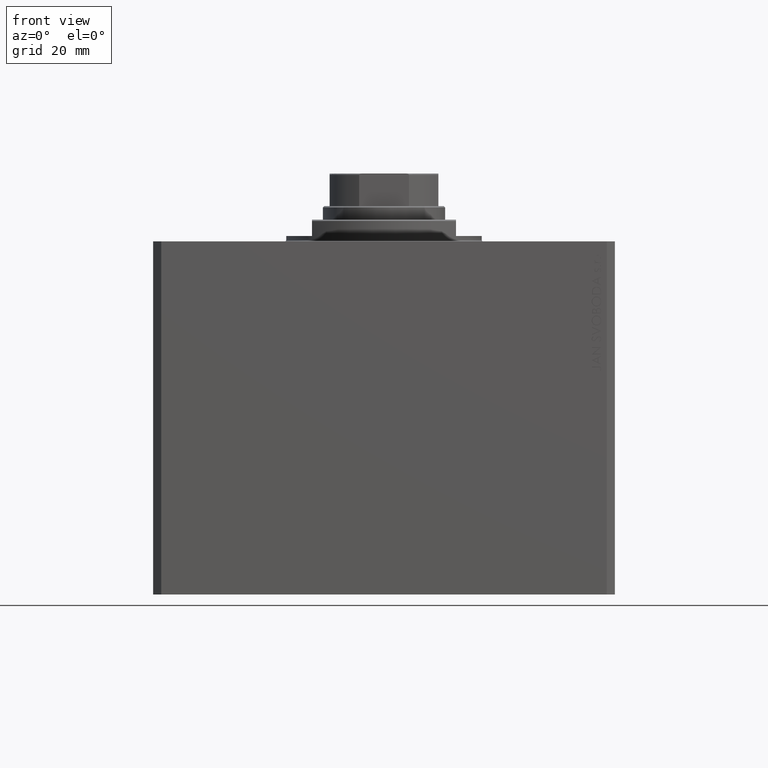
[diagram: clean part render]
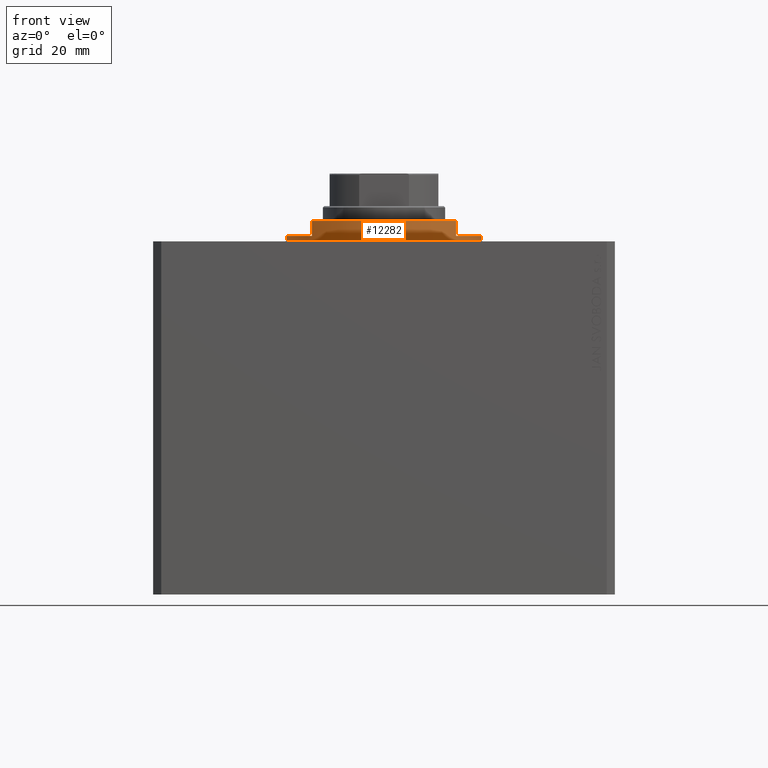
[diagram: same view with one face highlighted and labeled with its STEP entity id]
A machine part, front view. The second image highlights one B-rep face of the part: STEP entity #12282.
In plain terms, the highlighted cylindrical surface (partial cylindrical patch) has radius 36 mm, axis along (0, 0, -1).
Its self-contained STEP definition (entity closure, byte-faithful):
#245 = CARTESIAN_POINT ( 'NONE',  ( -36.00000000000000000, 4.408728476930470856E-15, -2.000000000000000000 ) ) ;
#477 = EDGE_CURVE ( 'NONE', #15565, #11617, #5649, .T. ) ;
#2856 = CARTESIAN_POINT ( 'NONE',  ( 26.50000000000000000, -24.36698586202240691, -2.000000000000000000 ) ) ;
#3354 = VERTEX_POINT ( 'NONE', #39357 ) ;
#4597 = VERTEX_POINT ( 'NONE', #41248 ) ;
#5018 = CARTESIAN_POINT ( 'NONE',  ( 26.50000000000000000, -24.36698586202240691, -7.499999999999965361 ) ) ;
#5599 = LINE ( 'NONE', #29730, #21843 ) ;
#5649 = CIRCLE ( 'NONE', #43823, 36.00000000000000000 ) ;
#5766 = ORIENTED_EDGE ( 'NONE', *, *, #477, .T. ) ;
#7180 = CARTESIAN_POINT ( 'NONE',  ( 0.000000000000000000, 0.000000000000000000, -2.000000000000000000 ) ) ;
#9266 = ORIENTED_EDGE ( 'NONE', *, *, #32242, .T. ) ;
#11451 = FACE_OUTER_BOUND ( 'NONE', #25705, .T. ) ;
#11617 = VERTEX_POINT ( 'NONE', #5018 ) ;
#11909 = CYLINDRICAL_SURFACE ( 'NONE', #16765, 36.00000000000000000 ) ;
#12006 = ORIENTED_EDGE ( 'NONE', *, *, #20584, .F. ) ;
#12282 = ADVANCED_FACE ( 'NONE', ( #11451 ), #11909, .T. ) ;
#12810 = CARTESIAN_POINT ( 'NONE',  ( 26.50000000000000000, -24.36698586202240691, -8.000000000000000000 ) ) ;
#13751 = DIRECTION ( 'NONE',  ( -1.000000000000000000, 0.000000000000000000, 0.000000000000000000 ) ) ;
#14523 = LINE ( 'NONE', #17226, #33543 ) ;
#14738 = AXIS2_PLACEMENT_3D ( 'NONE', #30987, #34379, #24008 ) ;
#14849 = CARTESIAN_POINT ( 'NONE',  ( 0.000000000000000000, 0.000000000000000000, -8.000000000000000000 ) ) ;
#15192 = AXIS2_PLACEMENT_3D ( 'NONE', #33527, #23817, #41169 ) ;
#15565 = VERTEX_POINT ( 'NONE', #36744 ) ;
#15735 = DIRECTION ( 'NONE',  ( 1.000000000000000000, 0.000000000000000000, 0.000000000000000000 ) ) ;
#16403 = EDGE_CURVE ( 'NONE', #3354, #19701, #39238, .T. ) ;
#16765 = AXIS2_PLACEMENT_3D ( 'NONE', #14849, #43242, #15735 ) ;
#16960 = EDGE_CURVE ( 'NONE', #40272, #11617, #22738, .T. ) ;
#17008 = EDGE_CURVE ( 'NONE', #4597, #3354, #5599, .T. ) ;
#17132 = CARTESIAN_POINT ( 'NONE',  ( 0.000000000000000000, 0.000000000000000000, -7.499999999999965361 ) ) ;
#17226 = CARTESIAN_POINT ( 'NONE',  ( -26.50000000000000000, -24.36698586202240691, -8.000000000000000000 ) ) ;
#19302 = ORIENTED_EDGE ( 'NONE', *, *, #17008, .T. ) ;
#19701 = VERTEX_POINT ( 'NONE', #33284 ) ;
#20433 = VECTOR ( 'NONE', #32889, 1000.000000000000000 ) ;
#20584 = EDGE_CURVE ( 'NONE', #38116, #19701, #23910, .T. ) ;
#20663 = ORIENTED_EDGE ( 'NONE', *, *, #16403, .T. ) ;
#21279 = DIRECTION ( 'NONE',  ( 0.000000000000000000, 0.000000000000000000, -1.000000000000000000 ) ) ;
#21372 = DIRECTION ( 'NONE',  ( -1.000000000000000000, 0.000000000000000000, 0.000000000000000000 ) ) ;
#21717 = AXIS2_PLACEMENT_3D ( 'NONE', #7180, #34915, #21372 ) ;
#21843 = VECTOR ( 'NONE', #43474, 1000.000000000000000 ) ;
#22368 = ORIENTED_EDGE ( 'NONE', *, *, #41957, .F. ) ;
#22738 = LINE ( 'NONE', #12810, #20433 ) ;
#23367 = VECTOR ( 'NONE', #37204, 1000.000000000000000 ) ;
#23464 = CARTESIAN_POINT ( 'NONE',  ( -36.00000000000000000, 4.408728476930470856E-15, -8.000000000000000000 ) ) ;
#23817 = DIRECTION ( 'NONE',  ( 0.000000000000000000, 0.000000000000000000, -1.000000000000000000 ) ) ;
#23910 = LINE ( 'NONE', #23464, #23367 ) ;
#24008 = DIRECTION ( 'NONE',  ( 1.000000000000000000, 0.000000000000000000, 0.000000000000000000 ) ) ;
#25275 = CIRCLE ( 'NONE', #15192, 36.00000000000000000 ) ;
#25705 = EDGE_LOOP ( 'NONE', ( #12006, #37662, #9266, #5766, #32469, #22368, #19302, #20663 ) ) ;
#29730 = CARTESIAN_POINT ( 'NONE',  ( 36.00000000000000000, 0.000000000000000000, -8.000000000000000000 ) ) ;
#30987 = CARTESIAN_POINT ( 'NONE',  ( 0.000000000000000000, 0.000000000000000000, -0.5000000000000004441 ) ) ;
#32242 = EDGE_CURVE ( 'NONE', #40214, #15565, #14523, .T. ) ;
#32469 = ORIENTED_EDGE ( 'NONE', *, *, #16960, .F. ) ;
#32889 = DIRECTION ( 'NONE',  ( 0.000000000000000000, 0.000000000000000000, -1.000000000000000000 ) ) ;
#33284 = CARTESIAN_POINT ( 'NONE',  ( -36.00000000000000000, 4.408728476930470856E-15, -0.5000000000000004441 ) ) ;
#33527 = CARTESIAN_POINT ( 'NONE',  ( 0.000000000000000000, 0.000000000000000000, -2.000000000000000000 ) ) ;
#33543 = VECTOR ( 'NONE', #21279, 1000.000000000000000 ) ;
#34379 = DIRECTION ( 'NONE',  ( -0.000000000000000000, -0.000000000000000000, -1.000000000000000000 ) ) ;
#34915 = DIRECTION ( 'NONE',  ( 0.000000000000000000, 0.000000000000000000, -1.000000000000000000 ) ) ;
#35408 = CIRCLE ( 'NONE', #21717, 36.00000000000000000 ) ;
#36020 = CARTESIAN_POINT ( 'NONE',  ( -26.50000000000000000, -24.36698586202240691, -2.000000000000000000 ) ) ;
#36744 = CARTESIAN_POINT ( 'NONE',  ( -26.50000000000000000, -24.36698586202241046, -7.499999999999968026 ) ) ;
#37204 = DIRECTION ( 'NONE',  ( -0.000000000000000000, -0.000000000000000000, 1.000000000000000000 ) ) ;
#37662 = ORIENTED_EDGE ( 'NONE', *, *, #39565, .F. ) ;
#38116 = VERTEX_POINT ( 'NONE', #245 ) ;
#39238 = CIRCLE ( 'NONE', #14738, 36.00000000000000000 ) ;
#39357 = CARTESIAN_POINT ( 'NONE',  ( 36.00000000000000000, 0.000000000000000000, -0.5000000000000004441 ) ) ;
#39565 = EDGE_CURVE ( 'NONE', #40214, #38116, #25275, .T. ) ;
#40214 = VERTEX_POINT ( 'NONE', #36020 ) ;
#40272 = VERTEX_POINT ( 'NONE', #2856 ) ;
#41169 = DIRECTION ( 'NONE',  ( -1.000000000000000000, 0.000000000000000000, 0.000000000000000000 ) ) ;
#41248 = CARTESIAN_POINT ( 'NONE',  ( 36.00000000000000000, 0.000000000000000000, -2.000000000000000000 ) ) ;
#41957 = EDGE_CURVE ( 'NONE', #4597, #40272, #35408, .T. ) ;
#43242 = DIRECTION ( 'NONE',  ( -0.000000000000000000, -0.000000000000000000, 1.000000000000000000 ) ) ;
#43474 = DIRECTION ( 'NONE',  ( -0.000000000000000000, -0.000000000000000000, 1.000000000000000000 ) ) ;
#43823 = AXIS2_PLACEMENT_3D ( 'NONE', #17132, #44630, #13751 ) ;
#44630 = DIRECTION ( 'NONE',  ( 0.000000000000000000, 0.000000000000000000, 1.000000000000000000 ) ) ;